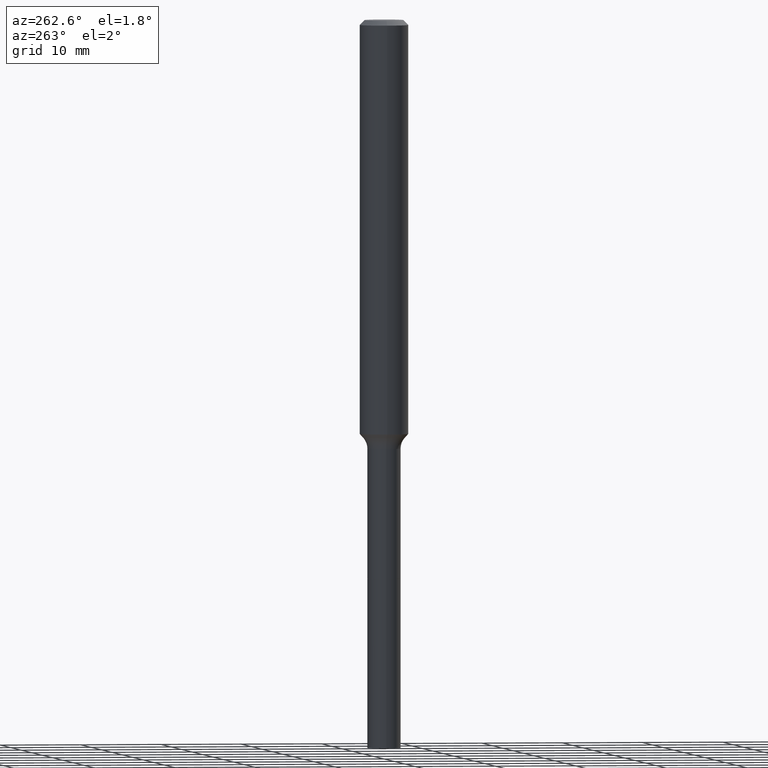
[diagram: clean part render]
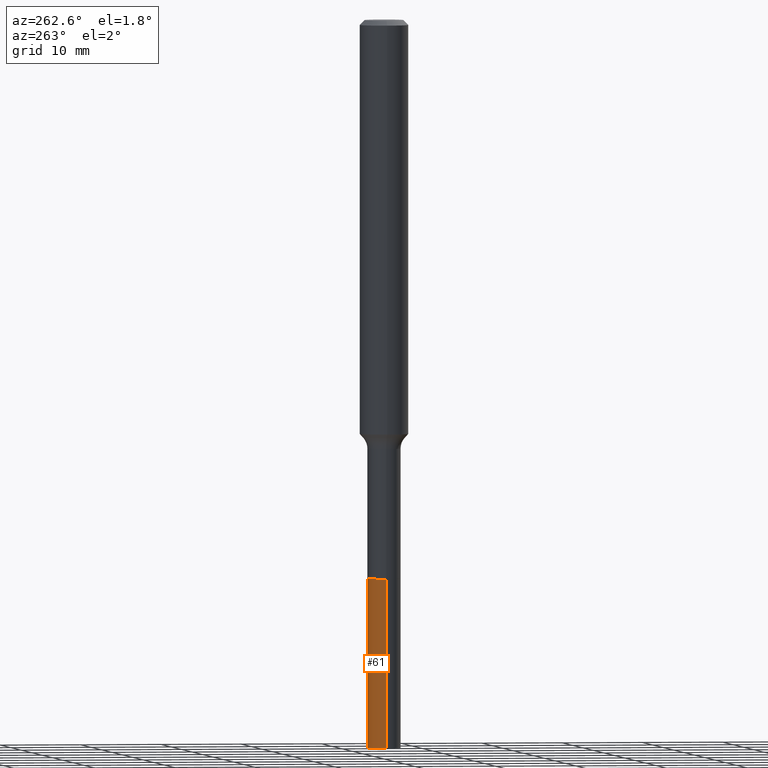
[diagram: same view with one face highlighted and labeled with its STEP entity id]
A machine part, auxiliary view. The second image highlights one B-rep face of the part: STEP entity #61.
In plain terms, the highlighted cylindrical surface (edge-blend (fillet) strip) has radius 2.0498 mm, axis along (-0, 0, 1).
Its self-contained STEP definition (entity closure, byte-faithful):
#2 = DIRECTION ( 'NONE',  ( -2.445468806185136597E-29, 3.491481338843145583E-15, 1.000000000000000000 ) ) ;
#15 = VERTEX_POINT ( 'NONE', #267 ) ;
#61 = ADVANCED_FACE ( 'NONE', ( #225 ), #383, .T. ) ;
#66 = CARTESIAN_POINT ( 'NONE',  ( 0.08069999999999999396, -1.005791029280544746E-14, -2.719299999999999606 ) ) ;
#73 = VECTOR ( 'NONE', #347, 39.37007874015748143 ) ;
#74 = CARTESIAN_POINT ( 'NONE',  ( 6.649963324659240635E-29, -9.494385204716164018E-15, -2.719299999999999606 ) ) ;
#84 = CARTESIAN_POINT ( 'NONE',  ( -0.08069999999999999396, -1.035946752856114053E-14, -3.543299999999999894 ) ) ;
#88 = EDGE_CURVE ( 'NONE', #15, #285, #418, .T. ) ;
#140 = EDGE_CURVE ( 'NONE', #287, #173, #325, .T. ) ;
#148 = EDGE_LOOP ( 'NONE', ( #153, #341, #446, #278 ) ) ;
#153 = ORIENTED_EDGE ( 'NONE', *, *, #258, .T. ) ;
#173 = VERTEX_POINT ( 'NONE', #452 ) ;
#176 = CARTESIAN_POINT ( 'NONE',  ( 8.665029620955794069E-29, -1.237136582792291707E-14, -3.543299999999999894 ) ) ;
#225 = FACE_OUTER_BOUND ( 'NONE', #148, .T. ) ;
#233 = CARTESIAN_POINT ( 'NONE',  ( -0.08069999999999999396, -8.920977216957763211E-15, -2.719299999999999606 ) ) ;
#251 = DIRECTION ( 'NONE',  ( -2.445468806185136877E-29, 3.491481338843145188E-15, 1.000000000000000000 ) ) ;
#258 = EDGE_CURVE ( 'NONE', #15, #287, #515, .T. ) ;
#267 = CARTESIAN_POINT ( 'NONE',  ( 0.08069999999999999396, -1.293489091601219894E-14, -3.543299999999999894 ) ) ;
#278 = ORIENTED_EDGE ( 'NONE', *, *, #88, .F. ) ;
#285 = VERTEX_POINT ( 'NONE', #487 ) ;
#287 = VERTEX_POINT ( 'NONE', #84 ) ;
#313 = DIRECTION ( 'NONE',  ( 1.000000000000000000, -6.982962677686271444E-15, 0.000000000000000000 ) ) ;
#319 = AXIS2_PLACEMENT_3D ( 'NONE', #74, #348, #421 ) ;
#325 = LINE ( 'NONE', #233, #370 ) ;
#341 = ORIENTED_EDGE ( 'NONE', *, *, #140, .T. ) ;
#347 = DIRECTION ( 'NONE',  ( -2.445468806185136877E-29, 3.491481338843145188E-15, 1.000000000000000000 ) ) ;
#348 = DIRECTION ( 'NONE',  ( -2.445468806185136597E-29, 3.491481338843145583E-15, 1.000000000000000000 ) ) ;
#350 = CARTESIAN_POINT ( 'NONE',  ( 6.649963324659240635E-29, -9.494385204716164018E-15, -2.719299999999999606 ) ) ;
#369 = DIRECTION ( 'NONE',  ( 1.000000000000000000, -6.982962677686271444E-15, 0.000000000000000000 ) ) ;
#370 = VECTOR ( 'NONE', #251, 39.37007874015748143 ) ;
#380 = DIRECTION ( 'NONE',  ( -2.445468806185136597E-29, 3.491481338843145583E-15, 1.000000000000000000 ) ) ;
#383 = CYLINDRICAL_SURFACE ( 'NONE', #496, 0.08069999999999999396 ) ;
#407 = EDGE_CURVE ( 'NONE', #285, #173, #444, .T. ) ;
#418 = LINE ( 'NONE', #66, #73 ) ;
#421 = DIRECTION ( 'NONE',  ( 1.000000000000000000, -6.982962677686271444E-15, 0.000000000000000000 ) ) ;
#444 = CIRCLE ( 'NONE', #319, 0.08069999999999999396 ) ;
#446 = ORIENTED_EDGE ( 'NONE', *, *, #407, .F. ) ;
#452 = CARTESIAN_POINT ( 'NONE',  ( -0.08069999999999999396, -1.035946752856114053E-14, -2.719299999999999606 ) ) ;
#474 = AXIS2_PLACEMENT_3D ( 'NONE', #176, #2, #369 ) ;
#487 = CARTESIAN_POINT ( 'NONE',  ( 0.08069999999999999396, -1.005791029280544746E-14, -2.719299999999999606 ) ) ;
#496 = AXIS2_PLACEMENT_3D ( 'NONE', #350, #380, #313 ) ;
#515 = CIRCLE ( 'NONE', #474, 0.08069999999999999396 ) ;